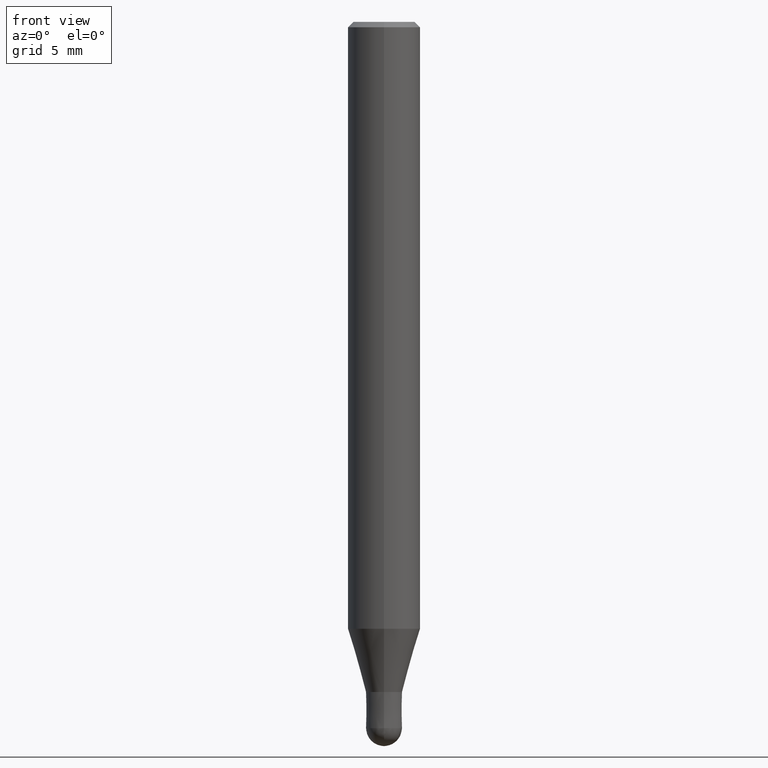
[diagram: clean part render]
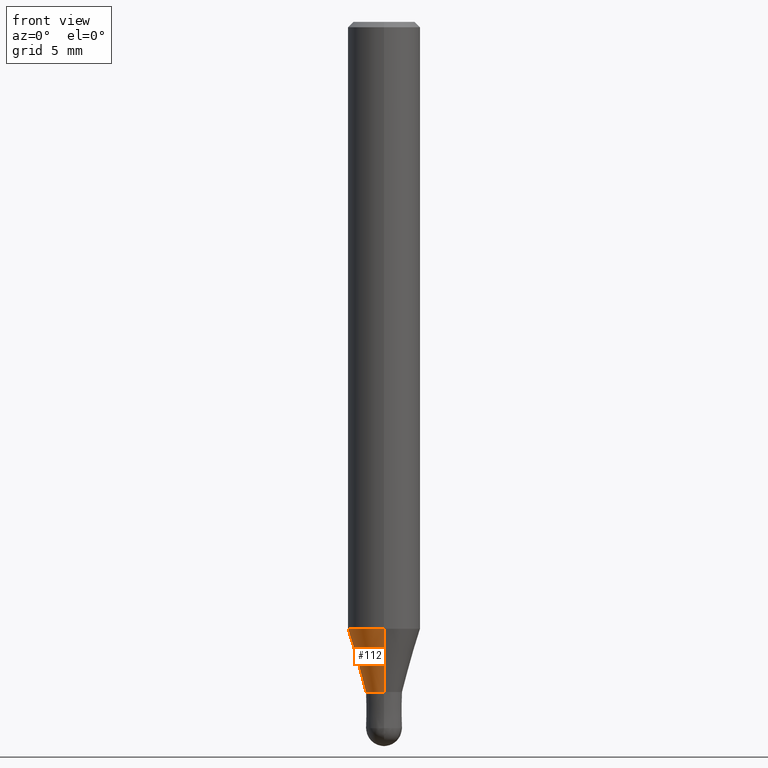
[diagram: same view with one face highlighted and labeled with its STEP entity id]
A machine part, front view. The second image highlights one B-rep face of the part: STEP entity #112.
In plain terms, the highlighted conical surface has half-angle 16.002 deg.
Its self-contained STEP definition (entity closure, byte-faithful):
#88=EDGE_CURVE('',#154,#128,#213,.T.);
#112=ADVANCED_FACE('',(#241),#242,.T.);
#122=EDGE_CURVE('',#154,#162,#253,.T.);
#128=VERTEX_POINT('',#260);
#132=EDGE_CURVE('',#128,#188,#264,.T.);
#154=VERTEX_POINT('',#288);
#162=VERTEX_POINT('',#296);
#180=EDGE_CURVE('',#188,#162,#318,.T.);
#188=VERTEX_POINT('',#328);
#213=LINE('',#347,#348);
#241=FACE_OUTER_BOUND('',#384,.T.);
#242=CONICAL_SURFACE('',#385,1.49995,0.279284171542493);
#253=CIRCLE('',#398,0.99995);
#260=CARTESIAN_POINT('',(2.44915147732706E-016,-1.99995,-33.513));
#264=CIRCLE('',#412,1.99995);
#288=CARTESIAN_POINT('',(1.22454512350469E-016,-0.99995,-37.0));
#296=CARTESIAN_POINT('',(0.0,0.99995,-37.0));
#318=LINE('',#476,#477);
#328=CARTESIAN_POINT('',(0.0,1.99995,-33.513));
#347=CARTESIAN_POINT('',(1.83684830041587E-016,-1.49995,-35.2565));
#348=VECTOR('',#496,1.0);
#384=EDGE_LOOP('',(#540,#541,#542,#543));
#385=AXIS2_PLACEMENT_3D('',#544,#545,#546);
#398=AXIS2_PLACEMENT_3D('',#562,#563,#564);
#412=AXIS2_PLACEMENT_3D('',#572,#573,#574);
#476=CARTESIAN_POINT('',(-1.83684830041587E-016,1.49995,-35.2565));
#477=VECTOR('',#636,1.0);
#496=DIRECTION('',(3.3758432755158E-017,-0.275667626987133,0.961253015304131));
#540=ORIENTED_EDGE('',*,*,#180,.T.);
#541=ORIENTED_EDGE('',*,*,#122,.F.);
#542=ORIENTED_EDGE('',*,*,#88,.T.);
#543=ORIENTED_EDGE('',*,*,#132,.T.);
#544=CARTESIAN_POINT('',(0.0,0.0,-35.2565));
#545=DIRECTION('',(-0.0,-0.0,1.0));
#546=DIRECTION('',(0.0,1.0,0.0));
#562=CARTESIAN_POINT('',(0.0,0.0,-37.0));
#563=DIRECTION('',(0.0,0.0,-1.0));
#564=DIRECTION('',(0.0,1.0,0.0));
#572=CARTESIAN_POINT('',(0.0,0.0,-33.513));
#573=DIRECTION('',(0.0,0.0,-1.0));
#574=DIRECTION('',(0.0,1.0,0.0));
#636=DIRECTION('',(3.3758432755158E-017,-0.275667626987133,-0.961253015304131));